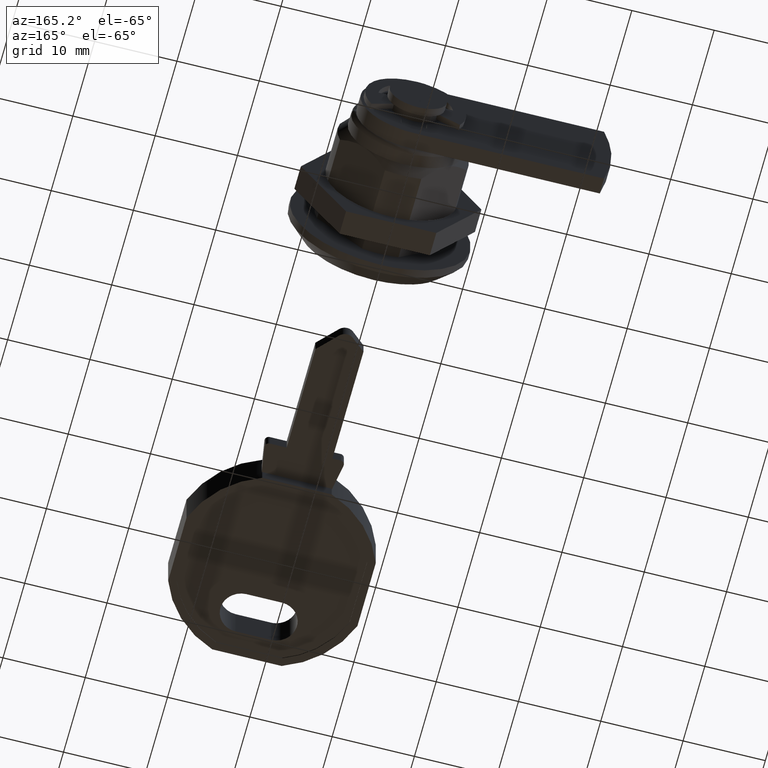
[diagram: clean part render]
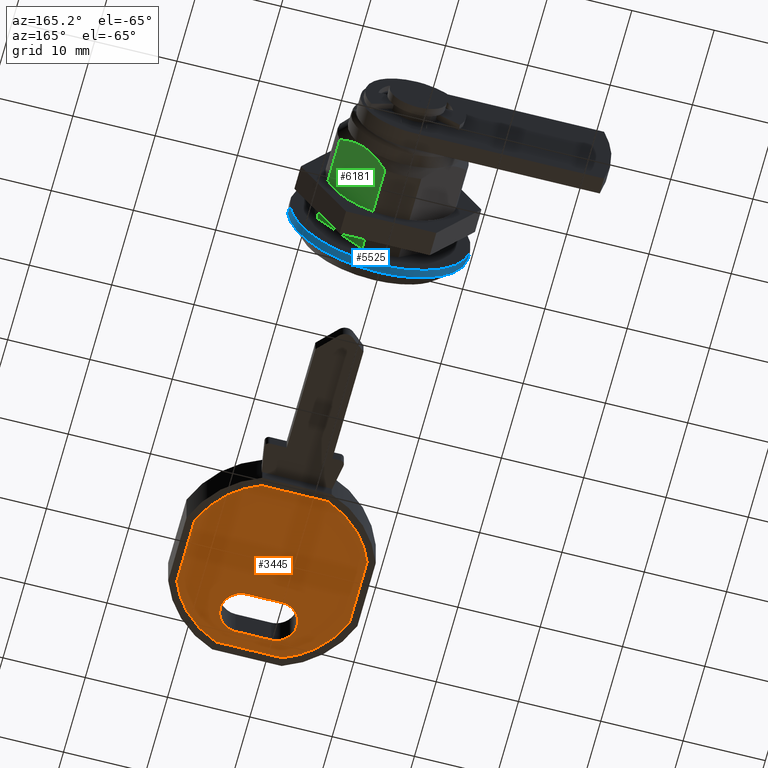
[diagram: same view with three faces highlighted in distinct colors, each labeled with its STEP entity id]
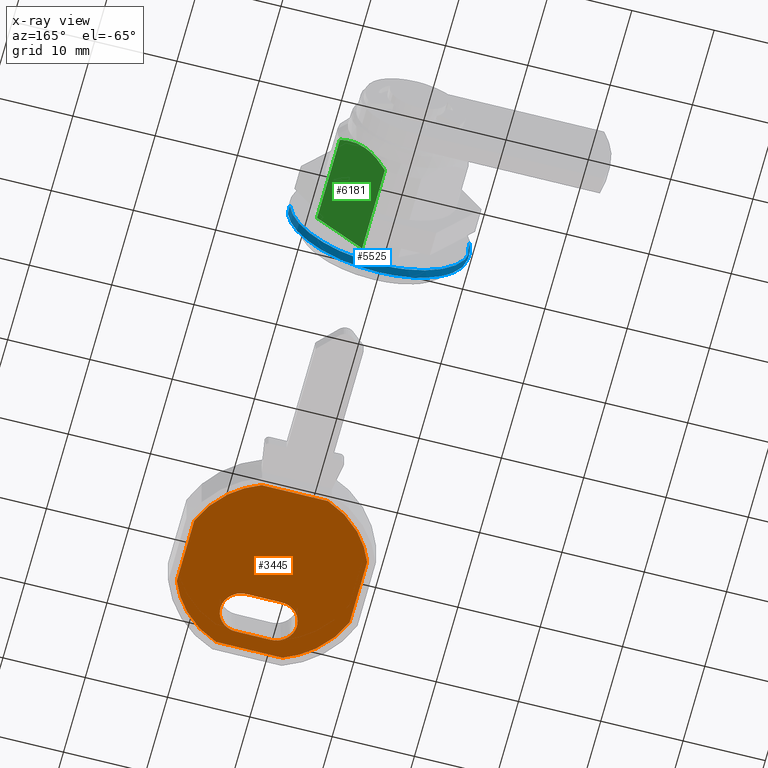
[diagram: x-ray of the same camera — body ghosted, the three highlighted faces saturated]
A machine part, auxiliary view with three faces highlighted in distinct colors.
The next image is the same camera in x-ray (body ghosted, the three faces saturated) — at least one of them is partly hidden behind the body in this view.
Their STEP definitions:

[orange] entity #3445 — the highlighted face is a freeform B-spline surface patch.
#3300=CARTESIAN_POINT('',(-52.114582039969640,-12.673951151485030,-2.400000000000000));
#3301=CARTESIAN_POINT('',(-29.016679943510919,-12.673951151485030,-2.400000000000000));
#3302=CARTESIAN_POINT('',(-52.114582039969640,10.423951151485049,-2.400000000000000));
#3303=CARTESIAN_POINT('',(-29.016679943510919,10.423951151485049,-2.400000000000000));
#3304=B_SPLINE_SURFACE_WITH_KNOTS('',1,1,((#3300,#3302),(#3301,#3303)),.UNSPECIFIED.,.F.,.F.,.U.,(2,2),(2,2),(0.0,23.097902096458728),(0.0,23.097902302970070),.UNSPECIFIED.);
#3305=CARTESIAN_POINT('',(-51.065631631838301,-5.163873806007100,-2.399999999999960));
#3306=VERTEX_POINT('',#3305);
#3307=CARTESIAN_POINT('',(-44.604504891624700,-11.625000546220701,-2.399999999999960));
#3308=VERTEX_POINT('',#3307);
#3309=CARTESIAN_POINT('',(-51.065631631838329,-5.163873806007109,-2.399999999999960));
#3310=CARTESIAN_POINT('',(-49.270741950826519,-9.830110865208919,-2.399999999999960));
#3311=CARTESIAN_POINT('',(-44.604504891624700,-11.625000546220701,-2.399999999999960));
#3319=(BOUNDED_CURVE()B_SPLINE_CURVE(2,(#3309,#3310,#3311),.UNSPECIFIED.,.F.,.U.)CURVE()GEOMETRIC_REPRESENTATION_ITEM()QUASI_UNIFORM_CURVE()RATIONAL_B_SPLINE_CURVE((1.0,0.913825432317849,1.0))REPRESENTATION_ITEM(''));
#3320=EDGE_CURVE('',#3306,#3308,#3319,.T.);
#3321=ORIENTED_EDGE('',*,*,#3320,.F.);
#3322=CARTESIAN_POINT('',(-51.065631631838301,2.913873806007120,-2.399999999999960));
#3323=VERTEX_POINT('',#3322);
#3324=CARTESIAN_POINT('',(-51.065631631838301,2.913873806007120,-2.399999999999960));
#3325=CARTESIAN_POINT('',(-51.065631631838301,-5.163873806007100,-2.399999999999960));
#3326=QUASI_UNIFORM_CURVE('',1,(#3324,#3325),.UNSPECIFIED.,.F.,.U.);
#3327=EDGE_CURVE('',#3323,#3306,#3326,.T.);
#3328=ORIENTED_EDGE('',*,*,#3327,.F.);
#3329=CARTESIAN_POINT('',(-44.604504891624700,9.375000546220690,-2.399999999999960));
#3330=VERTEX_POINT('',#3329);
#3331=CARTESIAN_POINT('',(-44.604504891624700,9.375000546220704,-2.399999999999960));
#3332=CARTESIAN_POINT('',(-49.270741950826505,7.580110865208927,-2.399999999999960));
#3333=CARTESIAN_POINT('',(-51.065631631838322,2.913873806007130,-2.399999999999960));
#3341=(BOUNDED_CURVE()B_SPLINE_CURVE(2,(#3331,#3332,#3333),.UNSPECIFIED.,.F.,.U.)CURVE()GEOMETRIC_REPRESENTATION_ITEM()QUASI_UNIFORM_CURVE()RATIONAL_B_SPLINE_CURVE((1.0,0.913825432317849,1.0))REPRESENTATION_ITEM(''));
#3342=EDGE_CURVE('',#3330,#3323,#3341,.T.);
#3343=ORIENTED_EDGE('',*,*,#3342,.F.);
#3344=CARTESIAN_POINT('',(-36.526757279610550,9.375000546220720,-2.399999999999960));
#3345=VERTEX_POINT('',#3344);
#3346=CARTESIAN_POINT('',(-36.526757279610550,9.375000546220720,-2.399999999999960));
#3347=CARTESIAN_POINT('',(-44.604504891624700,9.375000546220690,-2.399999999999960));
#3348=QUASI_UNIFORM_CURVE('',1,(#3346,#3347),.UNSPECIFIED.,.F.,.U.);
#3349=EDGE_CURVE('',#3345,#3330,#3348,.T.);
#3350=ORIENTED_EDGE('',*,*,#3349,.F.);
#3351=CARTESIAN_POINT('',(-30.065630539396899,2.913873806007105,-2.399999999999960));
#3352=VERTEX_POINT('',#3351);
#3353=CARTESIAN_POINT('',(-30.065630539396921,2.913873806007094,-2.399999999999960));
#3354=CARTESIAN_POINT('',(-31.860520220408720,7.580110865208920,-2.399999999999961));
#3355=CARTESIAN_POINT('',(-36.526757279610543,9.375000546220724,-2.399999999999960));
#3363=(BOUNDED_CURVE()B_SPLINE_CURVE(2,(#3353,#3354,#3355),.UNSPECIFIED.,.F.,.U.)CURVE()GEOMETRIC_REPRESENTATION_ITEM()QUASI_UNIFORM_CURVE()RATIONAL_B_SPLINE_CURVE((1.0,0.913825432317850,1.0))REPRESENTATION_ITEM(''));
#3364=EDGE_CURVE('',#3352,#3345,#3363,.T.);
#3365=ORIENTED_EDGE('',*,*,#3364,.F.);
#3366=CARTESIAN_POINT('',(-30.065630539396949,-5.163873806007169,-2.399999999999960));
#3367=VERTEX_POINT('',#3366);
#3368=CARTESIAN_POINT('',(-30.065630539396949,-5.163873806007169,-2.399999999999960));
#3369=CARTESIAN_POINT('',(-30.065630539396899,2.913873806007105,-2.399999999999960));
#3370=QUASI_UNIFORM_CURVE('',1,(#3368,#3369),.UNSPECIFIED.,.F.,.U.);
#3371=EDGE_CURVE('',#3367,#3352,#3370,.T.);
#3372=ORIENTED_EDGE('',*,*,#3371,.F.);
#3373=CARTESIAN_POINT('',(-36.526757279610500,-11.625000546220701,-2.399999999999960));
#3374=VERTEX_POINT('',#3373);
#3375=CARTESIAN_POINT('',(-36.526757279610507,-11.625000546220690,-2.399999999999960));
#3376=CARTESIAN_POINT('',(-31.860520220408755,-9.830110865208912,-2.399999999999960));
#3377=CARTESIAN_POINT('',(-30.065630539396938,-5.163873806007171,-2.399999999999960));
#3385=(BOUNDED_CURVE()B_SPLINE_CURVE(2,(#3375,#3376,#3377),.UNSPECIFIED.,.F.,.U.)CURVE()GEOMETRIC_REPRESENTATION_ITEM()QUASI_UNIFORM_CURVE()RATIONAL_B_SPLINE_CURVE((1.0,0.913825432317851,1.0))REPRESENTATION_ITEM(''));
#3386=EDGE_CURVE('',#3374,#3367,#3385,.T.);
#3387=ORIENTED_EDGE('',*,*,#3386,.F.);
#3388=CARTESIAN_POINT('',(-44.604504891624700,-11.625000546220701,-2.399999999999960));
#3389=CARTESIAN_POINT('',(-36.526757279610500,-11.625000546220701,-2.399999999999960));
#3390=QUASI_UNIFORM_CURVE('',1,(#3388,#3389),.UNSPECIFIED.,.F.,.U.);
#3391=EDGE_CURVE('',#3308,#3374,#3390,.T.);
#3392=ORIENTED_EDGE('',*,*,#3391,.F.);
#3393=EDGE_LOOP('',(#3321,#3328,#3343,#3350,#3365,#3372,#3387,#3392));
#3394=FACE_OUTER_BOUND('',#3393,.T.);
#3395=CARTESIAN_POINT('',(-49.165631494095713,-3.275000102119490,-2.399999999999960));
#3396=VERTEX_POINT('',#3395);
#3397=CARTESIAN_POINT('',(-49.165631494095713,1.025000102119492,-2.399999999999960));
#3398=VERTEX_POINT('',#3397);
#3399=CARTESIAN_POINT('',(-49.165631494095713,-3.275000102119490,-2.399999999999960));
#3400=CARTESIAN_POINT('',(-49.165631494095713,1.025000102119492,-2.399999999999960));
#3401=QUASI_UNIFORM_CURVE('',1,(#3399,#3400),.UNSPECIFIED.,.F.,.U.);
#3402=EDGE_CURVE('',#3396,#3398,#3401,.T.);
#3403=ORIENTED_EDGE('',*,*,#3402,.F.);
#3404=CARTESIAN_POINT('',(-44.165631256608449,-3.275000102119490,-2.399999999999960));
#3405=VERTEX_POINT('',#3404);
#3406=CARTESIAN_POINT('',(-44.165631256608478,-3.275000102119490,-2.399999999999960));
#3407=CARTESIAN_POINT('',(-44.165631256608478,-5.775000220863110,-2.399999999999961));
#3408=CARTESIAN_POINT('',(-46.665631375352113,-5.775000220863110,-2.399999999999960));
#3409=CARTESIAN_POINT('',(-49.165631494095734,-5.775000220863110,-2.399999999999961));
#3410=CARTESIAN_POINT('',(-49.165631494095727,-3.275000102119490,-2.399999999999960));
#3418=(BOUNDED_CURVE()B_SPLINE_CURVE(2,(#3406,#3407,#3408,#3409,#3410),.UNSPECIFIED.,.F.,.U.)B_SPLINE_CURVE_WITH_KNOTS((3,2,3),(0.0,0.500000000000000,1.0),.UNSPECIFIED.)CURVE()GEOMETRIC_REPRESENTATION_ITEM()RATIONAL_B_SPLINE_CURVE((1.0,0.707106781186547,1.0,0.707106781186547,1.0))REPRESENTATION_ITEM(''));
#3419=EDGE_CURVE('',#3405,#3396,#3418,.T.);
#3420=ORIENTED_EDGE('',*,*,#3419,.F.);
#3421=CARTESIAN_POINT('',(-44.165631256608449,1.025000102119492,-2.399999999999960));
#3422=VERTEX_POINT('',#3421);
#3423=CARTESIAN_POINT('',(-44.165631256608449,1.025000102119492,-2.399999999999960));
#3424=CARTESIAN_POINT('',(-44.165631256608449,-3.275000102119490,-2.399999999999960));
#3425=QUASI_UNIFORM_CURVE('',1,(#3423,#3424),.UNSPECIFIED.,.F.,.U.);
#3426=EDGE_CURVE('',#3422,#3405,#3425,.T.);
#3427=ORIENTED_EDGE('',*,*,#3426,.F.);
#3428=CARTESIAN_POINT('',(-49.165631494095720,1.025000102119492,-2.399999999999960));
#3429=CARTESIAN_POINT('',(-49.165631494095727,3.525000220863107,-2.399999999999960));
#3430=CARTESIAN_POINT('',(-46.665631375352113,3.525000220863107,-2.399999999999960));
#3431=CARTESIAN_POINT('',(-44.165631256608485,3.525000220863107,-2.399999999999960));
#3432=CARTESIAN_POINT('',(-44.165631256608492,1.025000102119492,-2.399999999999960));
#3440=(BOUNDED_CURVE()B_SPLINE_CURVE(2,(#3428,#3429,#3430,#3431,#3432),.UNSPECIFIED.,.F.,.U.)B_SPLINE_CURVE_WITH_KNOTS((3,2,3),(0.0,0.500000000000000,1.0),.UNSPECIFIED.)CURVE()GEOMETRIC_REPRESENTATION_ITEM()RATIONAL_B_SPLINE_CURVE((1.0,0.707106781186548,1.0,0.707106781186548,1.0))REPRESENTATION_ITEM(''));
#3441=EDGE_CURVE('',#3398,#3422,#3440,.T.);
#3442=ORIENTED_EDGE('',*,*,#3441,.F.);
#3443=EDGE_LOOP('',(#3403,#3420,#3427,#3442));
#3444=FACE_BOUND('',#3443,.T.);
#3445=ADVANCED_FACE('',(#3394,#3444),#3304,.F.);

[blue] entity #5525 — the highlighted face is a freeform B-spline surface patch.
#5259=CARTESIAN_POINT('',(-1.000000047497294,10.923105821719210,1.298372327912649));
#5260=VERTEX_POINT('',#5259);
#5261=CARTESIAN_POINT('',(-1.000000047496332,5.916359008939392,-9.273440977962377));
#5262=VERTEX_POINT('',#5261);
#5263=CARTESIAN_POINT('',(-1.000000047497294,10.923105821719210,1.298372327912649));
#5264=CARTESIAN_POINT('',(-1.000000047497508,11.000000522472000,0.651463166814729));
#5265=CARTESIAN_POINT('',(-1.000000047497508,11.000000522472000,0.0));
#5266=CARTESIAN_POINT('',(-1.000000047497508,11.000000522472000,-6.030130502549076));
#5267=CARTESIAN_POINT('',(-1.000000047496332,5.916359008939392,-9.273440977962377));
#5275=(BOUNDED_CURVE()B_SPLINE_CURVE(2,(#5263,#5264,#5265,#5266,#5267),.UNSPECIFIED.,.F.,.U.)B_SPLINE_CURVE_WITH_KNOTS((3,2,3),(0.229562540277417,0.250000000000000,0.407950112626960),.UNSPECIFIED.)CURVE()GEOMETRIC_REPRESENTATION_ITEM()RATIONAL_B_SPLINE_CURVE((0.956026885043735,0.976056026549930,1.0,0.814949932402970,0.863729296954559))REPRESENTATION_ITEM(''));
#5276=EDGE_CURVE('',#5260,#5262,#5275,.T.);
#5319=CARTESIAN_POINT('',(-1.000000047495325,-10.966091191926679,-0.863050094015688));
#5320=VERTEX_POINT('',#5319);
#5326=CARTESIAN_POINT('',(-1.000000047498739,-10.979484106171240,-0.671520853395347));
#5327=VERTEX_POINT('',#5326);
#5328=CARTESIAN_POINT('',(-1.000000047495325,-10.966091191926678,-0.863050094015688));
#5329=CARTESIAN_POINT('',(-1.000000047497508,-10.973623431424580,-0.767343916809242));
#5330=CARTESIAN_POINT('',(-1.000000047498739,-10.979484106171240,-0.671520853395347));
#5338=(BOUNDED_CURVE()B_SPLINE_CURVE(2,(#5328,#5329,#5330),.UNSPECIFIED.,.F.,.U.)B_SPLINE_CURVE_WITH_KNOTS((3,3),(0.736331300632250,0.739333168323861),.UNSPECIFIED.)CURVE()GEOMETRIC_REPRESENTATION_ITEM()RATIONAL_B_SPLINE_CURVE((0.969723356170736,0.972855690603391,0.976072483346325))REPRESENTATION_ITEM(''));
#5339=EDGE_CURVE('',#5320,#5327,#5338,.T.);
#5392=CARTESIAN_POINT('',(-1.000000047497508,0.0,-11.000000522472000));
#5393=VERTEX_POINT('',#5392);
#5394=CARTESIAN_POINT('',(-1.000000047496332,5.916359008939392,-9.273440977962375));
#5395=CARTESIAN_POINT('',(-1.000000047497508,3.210108761667769,-11.000000522472002));
#5396=CARTESIAN_POINT('',(-1.000000047497508,0.0,-11.000000522472000));
#5404=(BOUNDED_CURVE()B_SPLINE_CURVE(2,(#5394,#5395,#5396),.UNSPECIFIED.,.F.,.U.)B_SPLINE_CURVE_WITH_KNOTS((3,3),(0.407950112626959,0.500000000000000),.UNSPECIFIED.)CURVE()GEOMETRIC_REPRESENTATION_ITEM()RATIONAL_B_SPLINE_CURVE((0.863729296954559,0.892156848783577,1.0))REPRESENTATION_ITEM(''));
#5405=EDGE_CURVE('',#5262,#5393,#5404,.T.);
#5407=CARTESIAN_POINT('',(-1.000000047497508,0.0,-11.000000522472000));
#5408=CARTESIAN_POINT('',(-1.000000047497508,-10.168295891177598,-11.000000522472002));
#5409=CARTESIAN_POINT('',(-1.000000047495325,-10.966091191926672,-0.863050094015688));
#5417=(BOUNDED_CURVE()B_SPLINE_CURVE(2,(#5407,#5408,#5409),.UNSPECIFIED.,.F.,.U.)B_SPLINE_CURVE_WITH_KNOTS((3,3),(0.500000000000000,0.736331300632249),.UNSPECIFIED.)CURVE()GEOMETRIC_REPRESENTATION_ITEM()RATIONAL_B_SPLINE_CURVE((1.0,0.723120658605804,0.969723356170734))REPRESENTATION_ITEM(''));
#5418=EDGE_CURVE('',#5393,#5320,#5417,.T.);
#5453=CARTESIAN_POINT('',(0.025000001187438,10.923105308820006,1.298376642893926));
#5454=CARTESIAN_POINT('',(0.025000001187438,10.960264290519293,0.985762061838941));
#5455=CARTESIAN_POINT('',(0.025000001187438,10.979483304138020,0.671533966779579));
#5456=CARTESIAN_POINT('',(0.025000001187438,11.651017270917595,-10.307949337358439));
#5457=CARTESIAN_POINT('',(0.025000001187438,0.671533966779579,-10.979483304138020));
#5458=CARTESIAN_POINT('',(0.025000001187438,-10.307949337358439,-11.651017270917595));
#5459=CARTESIAN_POINT('',(0.025000001187438,-10.979483304138020,-0.671533966779579));
#5460=CARTESIAN_POINT('',(-1.025625048714632,10.923105308820006,1.298376642893926));
#5461=CARTESIAN_POINT('',(-1.025625048714632,10.960264290519293,0.985762061838941));
#5462=CARTESIAN_POINT('',(-1.025625048714632,10.979483304138020,0.671533966779579));
#5463=CARTESIAN_POINT('',(-1.025625048714632,11.651017270917595,-10.307949337358439));
#5464=CARTESIAN_POINT('',(-1.025625048714632,0.671533966779579,-10.979483304138020));
#5465=CARTESIAN_POINT('',(-1.025625048714632,-10.307949337358439,-11.651017270917595));
#5466=CARTESIAN_POINT('',(-1.025625048714632,-10.979483304138020,-0.671533966779579));
#5474=(BOUNDED_SURFACE()B_SPLINE_SURFACE(2,1,((#5453,#5460),(#5454,#5461),(#5455,#5462),(#5456,#5463),(#5457,#5464),(#5458,#5465),(#5459,#5466)),.UNSPECIFIED.,.F.,.F.,.U.)B_SPLINE_SURFACE_WITH_KNOTS((3,2,2,3),(2,2),(0.0,0.729015904403046,18.954413514479182,37.179811124555307),(0.0,1.0),.UNSPECIFIED.)GEOMETRIC_REPRESENTATION_ITEM()RATIONAL_B_SPLINE_SURFACE(((0.977505800795127,0.977505800795127),(0.988284271247462,0.988284271247462),(1.0,1.0),(0.707106781186548,0.707106781186548),(1.0,1.0),(0.707106781186548,0.707106781186548),(1.0,1.0)))REPRESENTATION_ITEM('')SURFACE());
#5475=ORIENTED_EDGE('',*,*,#5276,.F.);
#5476=CARTESIAN_POINT('',(-2.661964E-017,10.923105815399859,1.298372381077001));
#5477=VERTEX_POINT('',#5476);
#5478=CARTESIAN_POINT('',(-2.661964E-017,10.923105815399859,1.298372381077001));
#5479=CARTESIAN_POINT('',(-1.000000047497294,10.923105821719210,1.298372327912649));
#5480=QUASI_UNIFORM_CURVE('',1,(#5478,#5479),.UNSPECIFIED.,.F.,.U.);
#5481=EDGE_CURVE('',#5477,#5260,#5480,.T.);
#5482=ORIENTED_EDGE('',*,*,#5481,.F.);
#5483=CARTESIAN_POINT('',(0.0,0.0,-11.000000522472000));
#5484=VERTEX_POINT('',#5483);
#5485=CARTESIAN_POINT('',(-2.661964E-017,10.923105815399857,1.298372381077001));
#5486=CARTESIAN_POINT('',(0.0,11.000000522472003,0.651463193677925));
#5487=CARTESIAN_POINT('',(0.0,11.000000522472000,0.0));
#5488=CARTESIAN_POINT('',(0.0,11.000000522472002,-11.000000522472002));
#5489=CARTESIAN_POINT('',(0.0,0.0,-11.000000522472000));
#5497=(BOUNDED_CURVE()B_SPLINE_CURVE(2,(#5485,#5486,#5487,#5488,#5489),.UNSPECIFIED.,.F.,.U.)B_SPLINE_CURVE_WITH_KNOTS((3,2,3),(0.229562539454854,0.250000000000000,0.500000000000000),.UNSPECIFIED.)CURVE()GEOMETRIC_REPRESENTATION_ITEM()RATIONAL_B_SPLINE_CURVE((0.956026883431475,0.976056025586237,1.0,0.707106781186547,1.0))REPRESENTATION_ITEM(''));
#5498=EDGE_CURVE('',#5477,#5484,#5497,.T.);
#5499=ORIENTED_EDGE('',*,*,#5498,.T.);
#5500=CARTESIAN_POINT('',(-2.428613E-017,-10.979484096265180,-0.671521015364392));
#5501=VERTEX_POINT('',#5500);
#5502=CARTESIAN_POINT('',(0.0,0.0,-11.000000522472000));
#5503=CARTESIAN_POINT('',(0.0,-10.347779456512720,-11.000000522472002));
#5504=CARTESIAN_POINT('',(-2.428613E-017,-10.979484096265177,-0.671521015364392));
#5512=(BOUNDED_CURVE()B_SPLINE_CURVE(2,(#5502,#5503,#5504),.UNSPECIFIED.,.F.,.U.)B_SPLINE_CURVE_WITH_KNOTS((3,3),(0.500000000000000,0.739333165778455),.UNSPECIFIED.)CURVE()GEOMETRIC_REPRESENTATION_ITEM()RATIONAL_B_SPLINE_CURVE((1.0,0.719603754825339,0.976072477891025))REPRESENTATION_ITEM(''));
#5513=EDGE_CURVE('',#5484,#5501,#5512,.T.);
#5514=ORIENTED_EDGE('',*,*,#5513,.T.);
#5515=CARTESIAN_POINT('',(-2.428613E-017,-10.979484096265180,-0.671521015364392));
#5516=CARTESIAN_POINT('',(-1.000000047498739,-10.979484106171240,-0.671520853395347));
#5517=QUASI_UNIFORM_CURVE('',1,(#5515,#5516),.UNSPECIFIED.,.F.,.U.);
#5518=EDGE_CURVE('',#5501,#5327,#5517,.T.);
#5519=ORIENTED_EDGE('',*,*,#5518,.T.);
#5520=ORIENTED_EDGE('',*,*,#5339,.F.);
#5521=ORIENTED_EDGE('',*,*,#5418,.F.);
#5522=ORIENTED_EDGE('',*,*,#5405,.F.);
#5523=EDGE_LOOP('',(#5475,#5482,#5499,#5514,#5519,#5520,#5521,#5522));
#5524=FACE_OUTER_BOUND('',#5523,.T.);
#5525=ADVANCED_FACE('',(#5524),#5474,.T.);

[green] entity #6181 — the highlighted face is a freeform B-spline surface patch.
#5122=CARTESIAN_POINT('',(11.500000546222021,-4.949747703406270,-4.949747703406190));
#5123=VERTEX_POINT('',#5122);
#5828=CARTESIAN_POINT('',(10.500000546221900,-7.688360621009180,-2.211134785803315));
#5829=VERTEX_POINT('',#5828);
#5843=CARTESIAN_POINT('',(11.500000546222021,-4.949747703406270,-4.949747703406190));
#5844=CARTESIAN_POINT('',(11.500000546221900,-5.189490255134948,-4.710005218849061));
#5845=CARTESIAN_POINT('',(11.475277598663791,-5.426195597908616,-4.473299808903827));
#5846=CARTESIAN_POINT('',(11.381261407578860,-5.894131020152851,-4.005364386659582));
#5847=CARTESIAN_POINT('',(11.312011504876470,-6.125366390331140,-3.774129016481290));
#5848=CARTESIAN_POINT('',(11.179469495430810,-6.468697769421013,-3.430797637391410));
#5849=CARTESIAN_POINT('',(11.130517519966631,-6.582555421509887,-3.316939985302536));
#5850=CARTESIAN_POINT('',(11.023886993183220,-6.809198691372401,-3.090296715440021));
#5851=CARTESIAN_POINT('',(10.966420178726150,-6.921528930969658,-2.977966475842759));
#5852=CARTESIAN_POINT('',(10.783434605681890,-7.255113607473764,-2.644381799338648));
#5853=CARTESIAN_POINT('',(10.647212768076590,-7.473343408608526,-2.426151998203890));
#5854=CARTESIAN_POINT('',(10.500000546221900,-7.688360621009180,-2.211134785803315));
#5855=B_SPLINE_CURVE_WITH_KNOTS('',3,(#5843,#5844,#5845,#5846,#5847,#5848,#5849,#5850,#5851,#5852,#5853,#5854),.UNSPECIFIED.,.F.,.U.,(4,2,2,2,2,4),(0.0,0.250000000000000,0.500000000000001,0.625000000000001,0.750000000000001,1.0),.UNSPECIFIED.);
#5856=EDGE_CURVE('',#5123,#5829,#5855,.T.);
#5876=CARTESIAN_POINT('',(10.500000546221919,-2.211134785803380,-7.688360621009110));
#5877=VERTEX_POINT('',#5876);
#5878=CARTESIAN_POINT('',(10.500000546221919,-2.211134785803380,-7.688360621009110));
#5879=CARTESIAN_POINT('',(10.647434212809930,-2.426475438939266,-7.473019967873248));
#5880=CARTESIAN_POINT('',(10.783240032692291,-2.644195257294689,-7.255300149517794));
#5881=CARTESIAN_POINT('',(11.025567884909920,-3.085626628381833,-6.813868778430645));
#5882=CARTESIAN_POINT('',(11.132082762426741,-3.309339645055727,-6.590155761756747));
#5883=CARTESIAN_POINT('',(11.308667262240149,-3.764222715448488,-6.135272691363977));
#5884=CARTESIAN_POINT('',(11.378712396909551,-3.995397779562866,-5.904097627249594));
#5885=CARTESIAN_POINT('',(11.450554550692500,-4.348958630882534,-5.550536775929925));
#5886=CARTESIAN_POINT('',(11.468961261276400,-4.467945921250538,-5.431549485561919));
#5887=CARTESIAN_POINT('',(11.493734749035660,-4.708383983965306,-5.191111422847144));
#5888=CARTESIAN_POINT('',(11.500000593641429,-4.829065570574789,-5.070429836237664));
#5889=CARTESIAN_POINT('',(11.500000546222021,-4.949747703406270,-4.949747703406190));
#5890=B_SPLINE_CURVE_WITH_KNOTS('',3,(#5878,#5879,#5880,#5881,#5882,#5883,#5884,#5885,#5886,#5887,#5888,#5889),.UNSPECIFIED.,.F.,.U.,(4,2,2,2,2,4),(0.0,0.250000000000000,0.500000000000000,0.750000000000000,0.875000000000000,1.0),.UNSPECIFIED.);
#5891=EDGE_CURVE('',#5877,#5123,#5890,.T.);
#6136=CARTESIAN_POINT('',(0.0,-2.211134785803385,-7.688360621009120));
#6137=VERTEX_POINT('',#6136);
#6138=CARTESIAN_POINT('',(10.500000546221919,-2.211134785803380,-7.688360621009110));
#6139=CARTESIAN_POINT('',(0.0,-2.211134785803385,-7.688360621009120));
#6140=QUASI_UNIFORM_CURVE('',1,(#6138,#6139),.UNSPECIFIED.,.F.,.U.);
#6141=EDGE_CURVE('',#5877,#6137,#6140,.T.);
#6159=CARTESIAN_POINT('',(-0.574425004994557,-1.937547263118223,-7.961948143694272));
#6160=CARTESIAN_POINT('',(-0.574425004994557,-7.961948192664504,-1.937547214147895));
#6161=CARTESIAN_POINT('',(12.074425859670630,-1.937547263118223,-7.961948143694272));
#6162=CARTESIAN_POINT('',(12.074425859670630,-7.961948192664504,-1.937547214147895));
#6163=B_SPLINE_SURFACE_WITH_KNOTS('',1,1,((#6159,#6161),(#6160,#6162)),.UNSPECIFIED.,.F.,.F.,.U.,(2,2),(2,2),(0.0,8.519789499737499),(0.0,12.648850864665180),.UNSPECIFIED.);
#6164=ORIENTED_EDGE('',*,*,#6141,.F.);
#6165=ORIENTED_EDGE('',*,*,#5891,.T.);
#6166=ORIENTED_EDGE('',*,*,#5856,.T.);
#6167=CARTESIAN_POINT('',(0.0,-7.688360621009091,-2.211134785803315));
#6168=VERTEX_POINT('',#6167);
#6169=CARTESIAN_POINT('',(10.500000546221900,-7.688360621009180,-2.211134785803315));
#6170=CARTESIAN_POINT('',(0.0,-7.688360621009091,-2.211134785803315));
#6171=QUASI_UNIFORM_CURVE('',1,(#6169,#6170),.UNSPECIFIED.,.F.,.U.);
#6172=EDGE_CURVE('',#5829,#6168,#6171,.T.);
#6173=ORIENTED_EDGE('',*,*,#6172,.T.);
#6174=CARTESIAN_POINT('',(0.0,-7.688360621009091,-2.211134785803315));
#6175=CARTESIAN_POINT('',(0.0,-2.211134785803385,-7.688360621009120));
#6176=QUASI_UNIFORM_CURVE('',1,(#6174,#6175),.UNSPECIFIED.,.F.,.U.);
#6177=EDGE_CURVE('',#6168,#6137,#6176,.T.);
#6178=ORIENTED_EDGE('',*,*,#6177,.T.);
#6179=EDGE_LOOP('',(#6164,#6165,#6166,#6173,#6178));
#6180=FACE_OUTER_BOUND('',#6179,.T.);
#6181=ADVANCED_FACE('',(#6180),#6163,.F.);